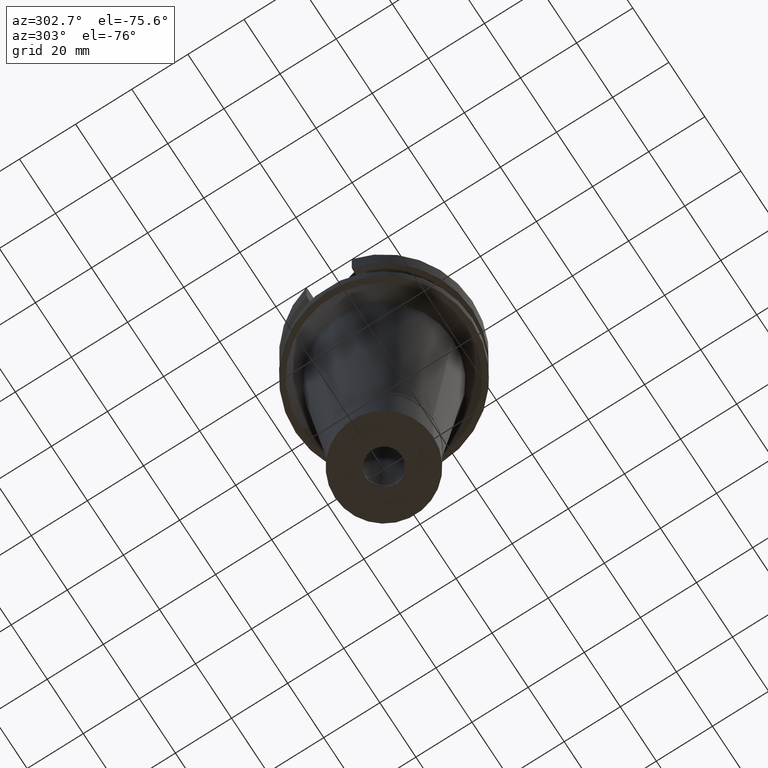
[diagram: clean part render]
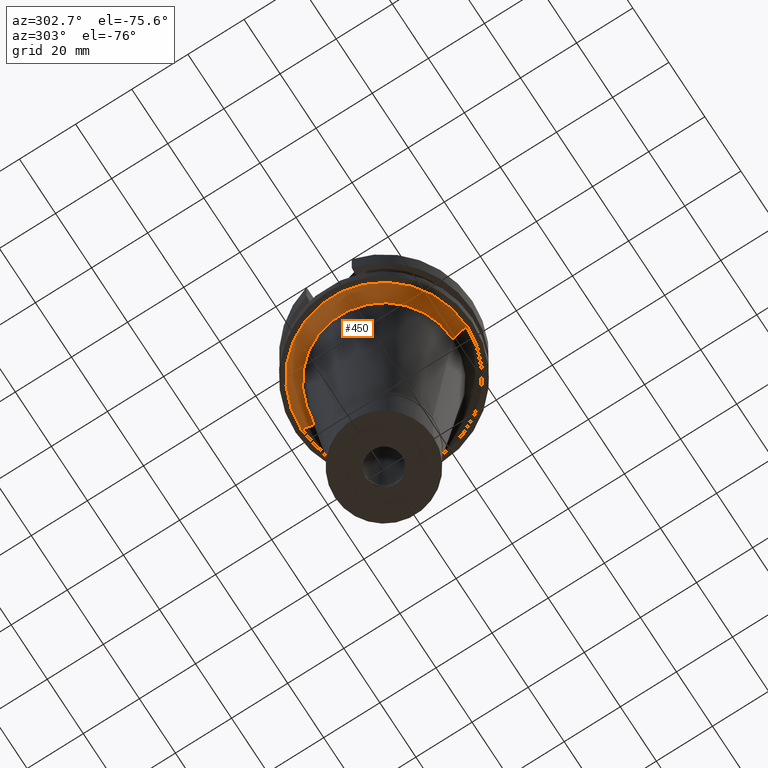
[diagram: same view with one face highlighted and labeled with its STEP entity id]
A machine part, auxiliary view. The second image highlights one B-rep face of the part: STEP entity #450.
In plain terms, the highlighted conical surface has half-angle 45 deg.
Its self-contained STEP definition (entity closure, byte-faithful):
#62 = CARTESIAN_POINT ( 'NONE',  ( 0.0000000000000000000, 0.0000000000000000000, -29.50000000000000000 ) ) ;
#128 = DIRECTION ( 'NONE',  ( 0.0000000000000000000, 0.7071067811865969777, -0.7071067811864980568 ) ) ;
#207 = LINE ( 'NONE', #2379, #2654 ) ;
#241 = EDGE_CURVE ( 'NONE', #2076, #2943, #2075, .T. ) ;
#280 = DIRECTION ( 'NONE',  ( 0.0000000000000000000, 0.0000000000000000000, -1.000000000000000000 ) ) ;
#285 = FACE_OUTER_BOUND ( 'NONE', #2447, .T. ) ;
#450 = ADVANCED_FACE ( 'NONE', ( #285 ), #2012, .T. ) ;
#576 = CARTESIAN_POINT ( 'NONE',  ( 0.0000000000000000000, 0.0000000000000000000, -32.00000000000000000 ) ) ;
#675 = EDGE_CURVE ( 'NONE', #2943, #1509, #981, .T. ) ;
#705 = VERTEX_POINT ( 'NONE', #1040 ) ;
#981 = CIRCLE ( 'NONE', #1235, 24.47284648302000321 ) ;
#1040 = CARTESIAN_POINT ( 'NONE',  ( 0.0000000000000000000, 29.47284648301999965, -27.00000000000000000 ) ) ;
#1235 = AXIS2_PLACEMENT_3D ( 'NONE', #576, #280, #2509 ) ;
#1277 = AXIS2_PLACEMENT_3D ( 'NONE', #2709, #2961, #2453 ) ;
#1333 = CARTESIAN_POINT ( 'NONE',  ( 0.0000000000000000000, 24.47284648302000321, -32.00000000000000000 ) ) ;
#1410 = DIRECTION ( 'NONE',  ( 0.0000000000000000000, -0.7071067811865969777, -0.7071067811864980568 ) ) ;
#1509 = VERTEX_POINT ( 'NONE', #1333 ) ;
#1635 = CIRCLE ( 'NONE', #1277, 29.47284648301999965 ) ;
#1673 = CARTESIAN_POINT ( 'NONE',  ( 0.0000000000000000000, -29.47284648301999965, -27.00000000000000000 ) ) ;
#1930 = CARTESIAN_POINT ( 'NONE',  ( 0.0000000000000000000, -24.47284648302000321, -32.00000000000000000 ) ) ;
#2012 = CONICAL_SURFACE ( 'NONE', #2373, 26.97284648301999965, 0.7853981633972997312 ) ;
#2016 = ORIENTED_EDGE ( 'NONE', *, *, #2051, .T. ) ;
#2051 = EDGE_CURVE ( 'NONE', #705, #1509, #207, .T. ) ;
#2075 = LINE ( 'NONE', #2320, #2152 ) ;
#2076 = VERTEX_POINT ( 'NONE', #1673 ) ;
#2152 = VECTOR ( 'NONE', #128, 1000.000000000000000 ) ;
#2213 = ORIENTED_EDGE ( 'NONE', *, *, #675, .F. ) ;
#2320 = CARTESIAN_POINT ( 'NONE',  ( 0.0000000000000000000, -29.47284648301999965, -27.00000000000000000 ) ) ;
#2330 = DIRECTION ( 'NONE',  ( 0.0000000000000000000, 1.000000000000000000, 0.0000000000000000000 ) ) ;
#2373 = AXIS2_PLACEMENT_3D ( 'NONE', #62, #2705, #2330 ) ;
#2379 = CARTESIAN_POINT ( 'NONE',  ( 0.0000000000000000000, 29.47284648301999965, -27.00000000000000000 ) ) ;
#2447 = EDGE_LOOP ( 'NONE', ( #2213, #2893, #3106, #2016 ) ) ;
#2453 = DIRECTION ( 'NONE',  ( 0.0000000000000000000, -1.000000000000000000, 0.0000000000000000000 ) ) ;
#2509 = DIRECTION ( 'NONE',  ( 0.0000000000000000000, -1.000000000000000000, 0.0000000000000000000 ) ) ;
#2654 = VECTOR ( 'NONE', #1410, 1000.000000000000000 ) ;
#2705 = DIRECTION ( 'NONE',  ( 0.0000000000000000000, 0.0000000000000000000, 1.000000000000000000 ) ) ;
#2709 = CARTESIAN_POINT ( 'NONE',  ( 0.0000000000000000000, 0.0000000000000000000, -27.00000000000000000 ) ) ;
#2731 = EDGE_CURVE ( 'NONE', #2076, #705, #1635, .T. ) ;
#2893 = ORIENTED_EDGE ( 'NONE', *, *, #241, .F. ) ;
#2943 = VERTEX_POINT ( 'NONE', #1930 ) ;
#2961 = DIRECTION ( 'NONE',  ( 0.0000000000000000000, 0.0000000000000000000, -1.000000000000000000 ) ) ;
#3106 = ORIENTED_EDGE ( 'NONE', *, *, #2731, .T. ) ;